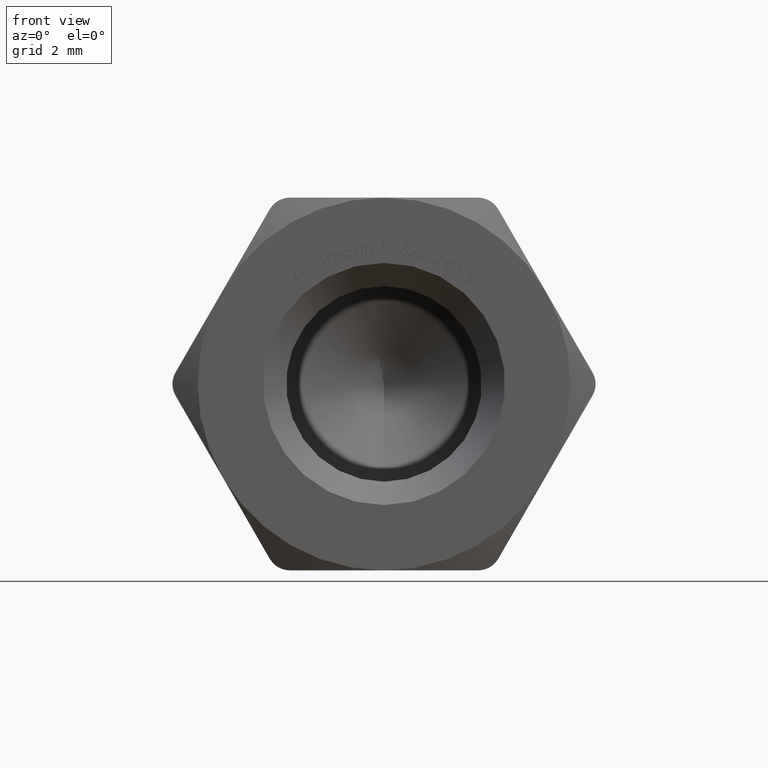
[diagram: clean part render]
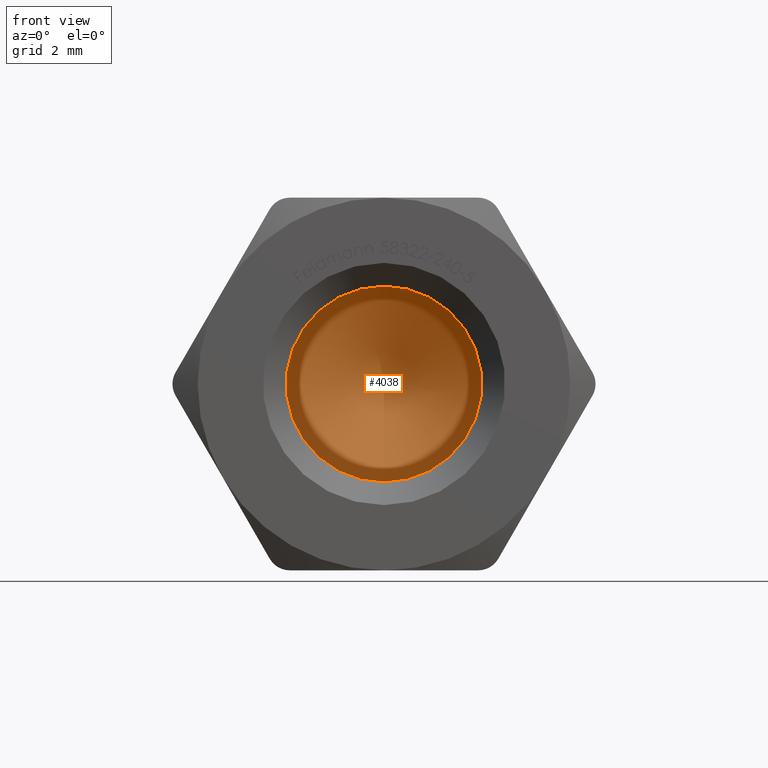
[diagram: same view with one face highlighted and labeled with its STEP entity id]
A machine part, front view. The second image highlights one B-rep face of the part: STEP entity #4038.
In plain terms, the highlighted conical surface has half-angle 59 deg.
Its self-contained STEP definition (entity closure, byte-faithful):
#152 = CARTESIAN_POINT ( 'NONE',  ( 0.0000000000000000000, 7.499999999999999100, -2.099999999999998300 ) ) ;
#172 = CIRCLE ( 'NONE', #2260, 2.099999999999998300 ) ;
#1990 = CARTESIAN_POINT ( 'NONE',  ( 0.0000000000000000000, 7.499999999999999100, 0.0000000000000000000 ) ) ;
#2260 = AXIS2_PLACEMENT_3D ( 'NONE', #1990, #10568, #3224 ) ;
#2282 = FACE_OUTER_BOUND ( 'NONE', #9634, .T. ) ;
#3224 = DIRECTION ( 'NONE',  ( 0.0000000000000000000, 0.0000000000000000000, -1.000000000000000000 ) ) ;
#4038 = ADVANCED_FACE ( 'NONE', ( #2282 ), #10897, .F. ) ;
#4148 = EDGE_CURVE ( 'NONE', #6235, #6235, #172, .T. ) ;
#5624 = DIRECTION ( 'NONE',  ( 0.0000000000000000000, 0.0000000000000000000, -1.000000000000000000 ) ) ;
#6235 = VERTEX_POINT ( 'NONE', #152 ) ;
#7804 = CARTESIAN_POINT ( 'NONE',  ( 0.0000000000000000000, 7.499999999999999100, 0.0000000000000000000 ) ) ;
#8847 = AXIS2_PLACEMENT_3D ( 'NONE', #7804, #10481, #5624 ) ;
#9572 = ORIENTED_EDGE ( 'NONE', *, *, #4148, .T. ) ;
#9634 = EDGE_LOOP ( 'NONE', ( #9572 ) ) ;
#10481 = DIRECTION ( 'NONE',  ( -0.0000000000000000000, -1.000000000000000000, -0.0000000000000000000 ) ) ;
#10568 = DIRECTION ( 'NONE',  ( -0.0000000000000000000, -1.000000000000000000, -0.0000000000000000000 ) ) ;
#10897 = CONICAL_SURFACE ( 'NONE', #8847, 2.099999999999998300, 1.029744258676653400 ) ;